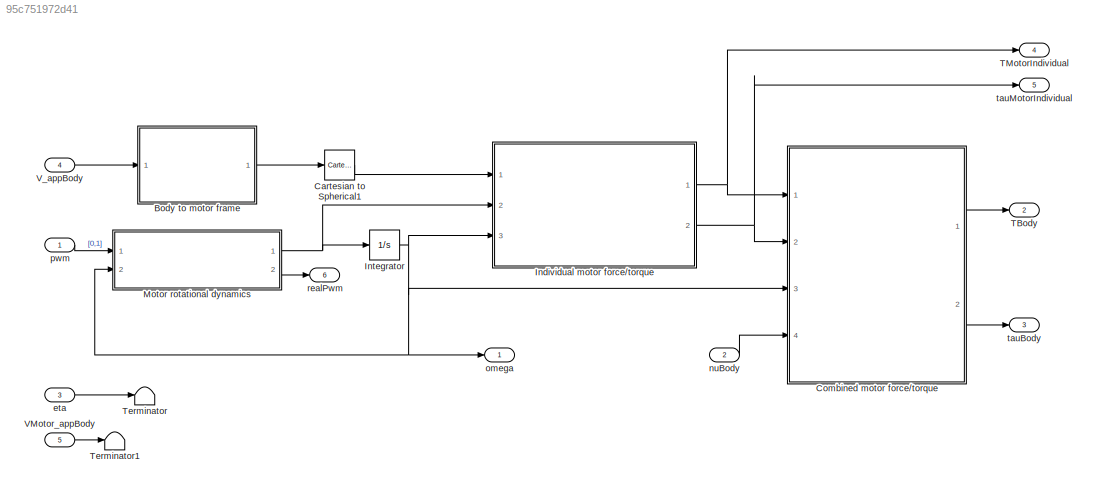
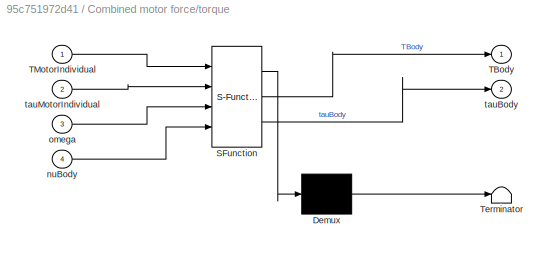
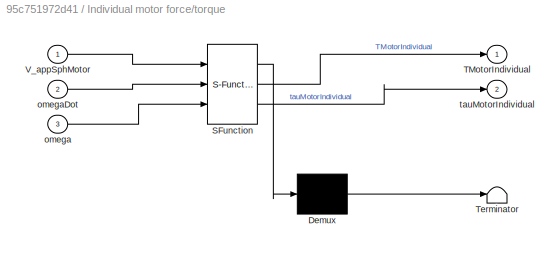
MODEL slx_95c751972d41
KIND model
CONFIG AbsTol = auto
CONFIG EnableMultiTasking = on
CONFIG FixedStep = auto
CONFIG MaxStep = auto
CONFIG MinStep = auto
CONFIG RelTol = 1e-3
CONFIG SampleTimeConstraint = Unconstrained
CONFIG SolverName = VariableStepAuto
CONFIG StartTime = 0.0
CONFIG StopTime = 10.0
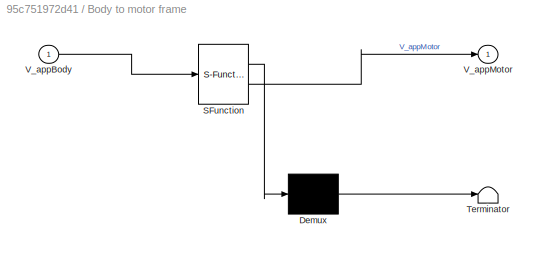
BLOCK [SubSystem] Body to motor frame
  ErrorFcn = Stateflow.Translate.translate
  PermitHierarchicalResolution = ExplicitOnly
  Ports = [1, 1]
  RequestExecContextInheritance = off
  SFBlockType = MATLAB Function
  TreatAsAtomicUnit = on
BLOCK [Demux] Body to motor frame/ Demux 
  Outputs = 1
  Ports = [1, 1]
BLOCK [S-Function] Body to motor frame/ SFunction 
  EnableBusSupport = on
  FunctionName = sf_sfun
  Parameters = Uav
  PortCounts = [1 2]
  Ports = [1, 2]
  SFcnIsStateOwnerBlock = off
  SFunctionDeploymentMode = off
  Tag = Stateflow S-Function 1
BLOCK [Terminator] Body to motor frame/ Terminator 
BLOCK [Inport] Body to motor frame/V_appBody
BLOCK [Outport] Body to motor frame/V_appMotor
  VectorParamsAs1DForOutWhenUnconnected = off
BLOCK [Reference] Cartesian to Spherical1  REF=QuaternionLibrary/Cartesian
to Spherical
  Ports = [1, 1]
  SourceBlock = QuaternionLibrary/Cartesian\nto Spherical
BLOCK [SubSystem] Combined motor force//torque
  ErrorFcn = Stateflow.Translate.translate
  PermitHierarchicalResolution = ExplicitOnly
  Ports = [4, 2]
  RequestExecContextInheritance = off
  SFBlockType = MATLAB Function
  TreatAsAtomicUnit = on
BLOCK [Demux] Combined motor force//torque/ Demux 
  Outputs = 1
  Ports = [1, 1]
BLOCK [S-Function] Combined motor force//torque/ SFunction 
  EnableBusSupport = on
  FunctionName = sf_sfun
  Parameters = Motor,Uav
  PortCounts = [4 3]
  Ports = [4, 3]
  SFcnIsStateOwnerBlock = off
  SFunctionDeploymentMode = off
  Tag = Stateflow S-Function 18
BLOCK [Terminator] Combined motor force//torque/ Terminator 
BLOCK [Outport] Combined motor force//torque/TBody
  VectorParamsAs1DForOutWhenUnconnected = off
BLOCK [Inport] Combined motor force//torque/TMotorIndividual
BLOCK [Inport] Combined motor force//torque/nuBody
  Port = 4
BLOCK [Inport] Combined motor force//torque/omega
  Port = 3
BLOCK [Outport] Combined motor force//torque/tauBody
  Port = 2
  VectorParamsAs1DForOutWhenUnconnected = off
BLOCK [Inport] Combined motor force//torque/tauMotorIndividual
  Port = 2
BLOCK [SubSystem] Individual motor force//torque
  ErrorFcn = Stateflow.Translate.translate
  PermitHierarchicalResolution = ExplicitOnly
  Ports = [3, 2]
  RequestExecContextInheritance = off
  SFBlockType = MATLAB Function
  TreatAsAtomicUnit = on
BLOCK [Demux] Individual motor force//torque/ Demux 
  Outputs = 1
  Ports = [1, 1]
BLOCK [S-Function] Individual motor force//torque/ SFunction 
  EnableBusSupport = on
  FunctionName = sf_sfun
  Parameters = Aero,Motor,Uav
  PortCounts = [3 3]
  Ports = [3, 3]
  SFcnIsStateOwnerBlock = off
  SFunctionDeploymentMode = off
  Tag = Stateflow S-Function 4
BLOCK [Terminator] Individual motor force//torque/ Terminator 
BLOCK [Outport] Individual motor force//torque/TMotorIndividual
  VectorParamsAs1DForOutWhenUnconnected = off
BLOCK [Inport] Individual motor force//torque/V_appSphMotor
BLOCK [Inport] Individual motor force//torque/omega
  Port = 3
BLOCK [Inport] Individual motor force//torque/omegaDot
  Port = 2
BLOCK [Outport] Individual motor force//torque/tauMotorIndividual
  Port = 2
  VectorParamsAs1DForOutWhenUnconnected = off
BLOCK [Integrator] Integrator
  ContinuousStateAttributes = 'omega'
  InitialCondition = Initial.OMEGA
  LimitOutput = on
  LowerSaturationLimit = zeros(size(Initial.OMEGA))
  Ports = [1, 1]
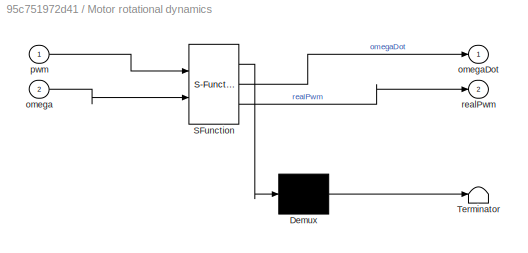
BLOCK [SubSystem] Motor rotational dynamics
  ErrorFcn = Stateflow.Translate.translate
  PermitHierarchicalResolution = ExplicitOnly
  Ports = [2, 2]
  RequestExecContextInheritance = off
  SFBlockType = MATLAB Function
  TreatAsAtomicUnit = on
BLOCK [Demux] Motor rotational dynamics/ Demux 
  Outputs = 1
  Ports = [1, 1]
BLOCK [S-Function] Motor rotational dynamics/ SFunction 
  EnableBusSupport = on
  FunctionName = sf_sfun
  PortCounts = [2 3]
  Ports = [2, 3]
  SFcnIsStateOwnerBlock = off
  SFunctionDeploymentMode = off
  Tag = Stateflow S-Function 5
BLOCK [Terminator] Motor rotational dynamics/ Terminator 
BLOCK [Inport] Motor rotational dynamics/omega
  Port = 2
BLOCK [Outport] Motor rotational dynamics/omegaDot
  VectorParamsAs1DForOutWhenUnconnected = off
BLOCK [Inport] Motor rotational dynamics/pwm
BLOCK [Outport] Motor rotational dynamics/realPwm
  Port = 2
  VectorParamsAs1DForOutWhenUnconnected = off
BLOCK [Outport] TBody
  Port = 2
  Unit = N
  VectorParamsAs1DForOutWhenUnconnected = off
BLOCK [Outport] TMotorIndividual
  Port = 4
  PortDimensions = [3,Uav.N_ROTORS]
  Unit = N
  VectorParamsAs1DForOutWhenUnconnected = off
BLOCK [Terminator] Terminator
BLOCK [Terminator] Terminator1
BLOCK [Inport] VMotor_appBody
  Port = 5
  PortDimensions = [3,Uav.N_ROTORS]
  Unit = m/s
BLOCK [Inport] V_appBody
  Port = 4
  PortDimensions = 3
  Unit = m/s
BLOCK [Inport] eta
  Port = 3
  PortDimensions = 3
  Unit = rad
BLOCK [Inport] nuBody
  Port = 2
  PortDimensions = 3
  Unit = rad/s
BLOCK [Outport] omega
  Unit = rad/s
  VectorParamsAs1DForOutWhenUnconnected = off
BLOCK [Inport] pwm
  PortDimensions = Uav.N_ROTORS
BLOCK [Outport] realPwm
  Port = 6
  VectorParamsAs1DForOutWhenUnconnected = off
BLOCK [Outport] tauBody
  Port = 3
  Unit = N*m
  VectorParamsAs1DForOutWhenUnconnected = off
BLOCK [Outport] tauMotorIndividual
  Port = 5
  PortDimensions = [3,Uav.N_ROTORS]
  Unit = N
  VectorParamsAs1DForOutWhenUnconnected = off
LINE Body to motor frame:1 -> Cartesian to Spherical1:1
LINE Cartesian to Spherical1:1 -> Individual motor force//torque:1
LINE Combined motor force//torque:1 -> TBody:1
LINE Combined motor force//torque:2 -> tauBody:1
NET Individual motor force//torque:1 -> Combined motor force//torque:1, TMotorIndividual:1
NET Individual motor force//torque:2 -> Combined motor force//torque:2, tauMotorIndividual:1
NET Integrator:1 -> Combined motor force//torque:3, Individual motor force//torque:3, Motor rotational dynamics:2, omega:1
NET Motor rotational dynamics:1 -> Individual motor force//torque:2, Integrator:1
LINE Motor rotational dynamics:2 -> realPwm:1
LINE VMotor_appBody:1 -> Terminator1:1
LINE V_appBody:1 -> Body to motor frame:1
LINE eta:1 -> Terminator:1
LINE nuBody:1 -> Combined motor force//torque:4
LINE pwm:1 -> Motor rotational dynamics:1
note: NET lines group one-source signal fan-out (src -> all destinations, sorted); 1:1 wires keep LINE
CHART Body to motor frame states=1 transitions=1
  STATE_LABEL 'eML_blk_kernel()'
  STATE_LABEL "SCRIPT:\nfunction V_appMotor = BodyToMotor( V_appBody, Uav )\n%#codegen\n    V_appMotor = [Uav.GAMMA';Uav.GAMMA';Uav.GAMMA'] .* 0;\n    for i = 1:Uav.N_ROTORS\n        V_appMotor(:,i) = Uav.R_MOTOR_TO_BODY(:,:,i)' * V_appBody;\n    end\nend"
CHART Individual motor force//torque states=1 transitions=1
  STATE_LABEL 'eML_blk_kernel()'
  STATE_LABEL 'SCRIPT:\nfunction [TMotorIndividual, tauMotorIndividual] = motorIndividual( ...\n    V_appSphMotor, omegaDot, omega, Motor, Uav, Aero )\n%#codegen\n    alpha = V_appSphMotor(2,:);\n    beta  = V_appSphMotor(1,:);\n    U     = V_appSphMotor(3,:);\n    \n    % Make assertions to avoid code generation errors\n    %assert(Uav.N_ROTORS < 16);\n\n    %% Thrusts\n    % Concatenated motor force/torque vectors in resp...<+1582ch>'
CHART Motor rotational dynamics states=1 transitions=1
  STATE_LABEL 'eML_blk_kernel()'
  STATE_LABEL 'SCRIPT:\nfunction [omegaDot, realPwm]  = motorRotDynamics( pwm, omega )\n%#codegen\n\nrealPwm = (1000 * pwm + 1000);\n\nrotorTimeConst = 7.006512e-02;\nomegaRef = 0.84 * ( 7.969173e-1.*realPwm - 6.528579e2 );\n\nomegaDot = (omegaRef - omega) / rotorTimeConst;\nend'
CHART Combined motor force//torque states=1 transitions=1
  STATE_LABEL 'eML_blk_kernel()'
  STATE_LABEL 'SCRIPT:\nfunction [TBody, tauBody] = motorCombined( TMotorIndividual,tauMotorIndividual,  ...\n    omega, nuBody, Motor, Uav)\n%#codegen\nassert(Uav.N_ROTORS < 16);\n\n% Initialise matrices to store motor force/torque vectors in body frame\nTBodyIndividual   = zeros(3, Uav.N_ROTORS);\ntauBodyIndividual = zeros(3, Uav.N_ROTORS);\n\n% Calculate forces and moments from each motor in the body frame\nfor i = 1:Ua...<+1293ch>'
CHART  states=0 transitions=0
CHART  states=0 transitions=0
CHART  states=0 transitions=0
CHART  states=0 transitions=0
